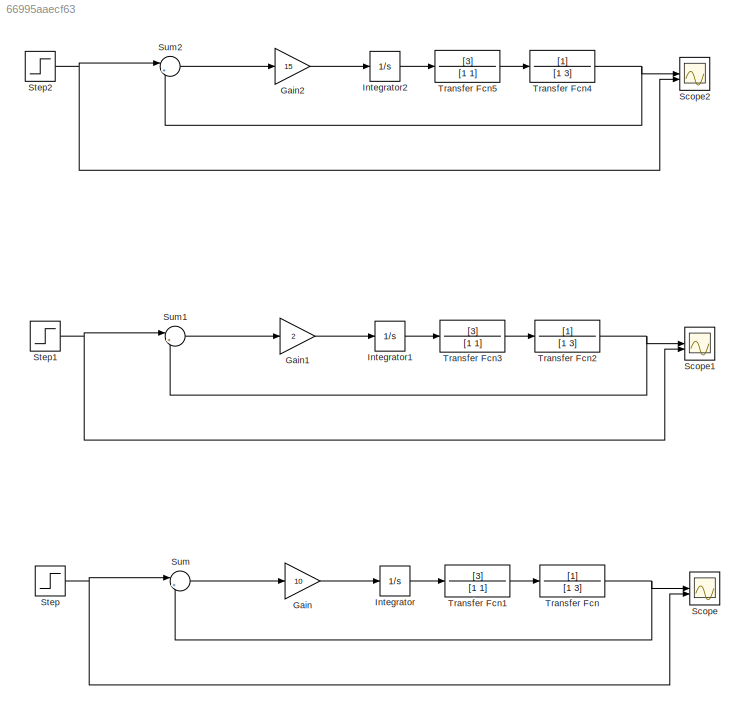
MODEL slx_66995aaecf63
KIND model
CONFIG AbsTol = auto
CONFIG EnableMultiTasking = off
CONFIG FixedStep = auto
CONFIG MaxStep = auto
CONFIG MinStep = auto
CONFIG RelTol = 1e-3
CONFIG SampleTimeConstraint = Unconstrained
CONFIG SolverName = VariableStepAuto
CONFIG StartTime = 0.0
CONFIG StopTime = 50.0
BLOCK [Gain] Gain
  Gain = 10
BLOCK [Gain] Gain1
  Gain = 2
BLOCK [Gain] Gain2
  Gain = 15
BLOCK [Integrator] Integrator
BLOCK [Integrator] Integrator1
BLOCK [Integrator] Integrator2
BLOCK [Scope] Scope
  Floating = off
  NumInputPorts = 2
  ScopeSpecificationString = Simulink.scopes.TimeScopeBlockCfg('CurrentConfiguration', extmgr.ConfigurationSet(extmgr.Configuration('Core','General UI',true),extmgr.Configuration('Core','Source UI',true),extmgr.Configuration('Sources','WiredSimulink',true),extmgr.Configuration('Visuals','Time Domain',true,'SerializedDisplays',{struct('MinYLimReal','-29346282.19456','MaxYLimReal','36685022.84807','YLabelReal','','MinYLimMag','...<+1684ch>
BLOCK [Scope] Scope1
  Floating = off
  NumInputPorts = 2
  ScopeSpecificationString = Simulink.scopes.TimeScopeBlockCfg('CurrentConfiguration', extmgr.ConfigurationSet(extmgr.Configuration('Core','General UI',true),extmgr.Configuration('Core','Source UI',true),extmgr.Configuration('Sources','WiredSimulink',true,'DataLoggingVariableName','ScopeData1'),extmgr.Configuration('Visuals','Time Domain',true,'SerializedDisplays',{struct('MinYLimReal','-29346282.19456','MaxYLimReal','3668502...<+1723ch>
BLOCK [Scope] Scope2
  Floating = off
  NumInputPorts = 2
  ScopeSpecificationString = Simulink.scopes.TimeScopeBlockCfg('CurrentConfiguration', extmgr.ConfigurationSet(extmgr.Configuration('Core','General UI',true),extmgr.Configuration('Core','Source UI',true),extmgr.Configuration('Sources','WiredSimulink',true,'DataLoggingVariableName','ScopeData2'),extmgr.Configuration('Visuals','Time Domain',true,'SerializedDisplays',{struct('MinYLimReal','-29346282.19456','MaxYLimReal','3668502...<+1723ch>
BLOCK [Step] Step
  SampleTime = 0
BLOCK [Step] Step1
  SampleTime = 0
BLOCK [Step] Step2
  SampleTime = 0
BLOCK [Sum] Sum
  Inputs = |+-
BLOCK [Sum] Sum1
  Inputs = |+-
BLOCK [Sum] Sum2
  Inputs = |+-
BLOCK [TransferFcn] Transfer Fcn
  Denominator = [1 3]
BLOCK [TransferFcn] Transfer Fcn1
  Denominator = [1 1]
  Numerator = [3]
BLOCK [TransferFcn] Transfer Fcn2
  Denominator = [1 3]
BLOCK [TransferFcn] Transfer Fcn3
  Denominator = [1 1]
  Numerator = [3]
BLOCK [TransferFcn] Transfer Fcn4
  Denominator = [1 3]
BLOCK [TransferFcn] Transfer Fcn5
  Denominator = [1 1]
  Numerator = [3]
LINE Gain1:1 -> Integrator1:1
LINE Gain2:1 -> Integrator2:1
LINE Gain:1 -> Integrator:1
LINE Integrator1:1 -> Transfer Fcn3:1
LINE Integrator2:1 -> Transfer Fcn5:1
LINE Integrator:1 -> Transfer Fcn1:1
NET Step1:1 -> Scope1:2, Sum1:1
NET Step2:1 -> Scope2:2, Sum2:1
NET Step:1 -> Scope:2, Sum:1
LINE Sum1:1 -> Gain1:1
LINE Sum2:1 -> Gain2:1
LINE Sum:1 -> Gain:1
LINE Transfer Fcn1:1 -> Transfer Fcn:1
NET Transfer Fcn2:1 -> Scope1:1, Sum1:2
LINE Transfer Fcn3:1 -> Transfer Fcn2:1
NET Transfer Fcn4:1 -> Scope2:1, Sum2:2
LINE Transfer Fcn5:1 -> Transfer Fcn4:1
NET Transfer Fcn:1 -> Scope:1, Sum:2
note: NET lines group one-source signal fan-out (src -> all destinations, sorted); 1:1 wires keep LINE
